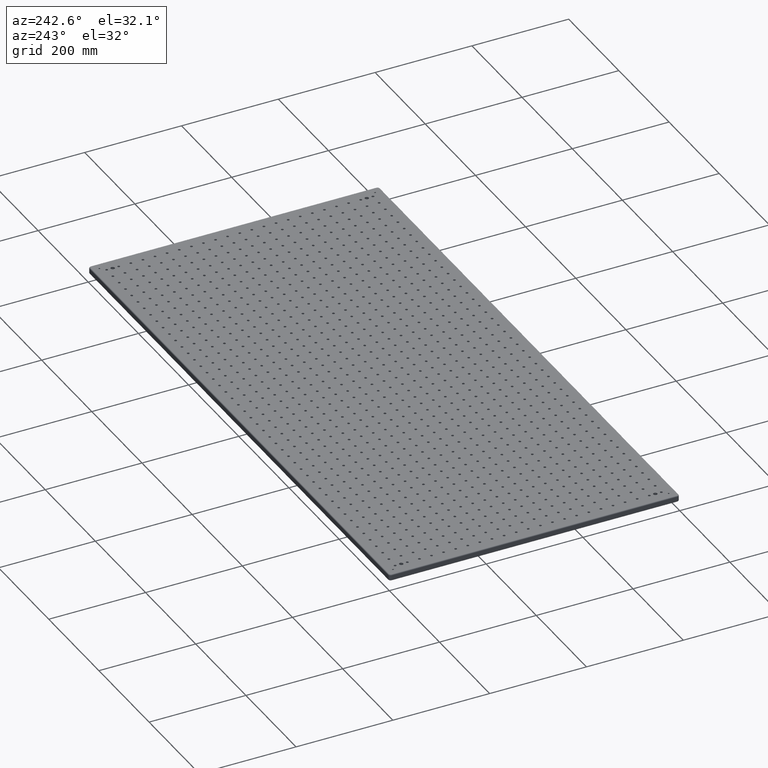
[diagram: clean part render]
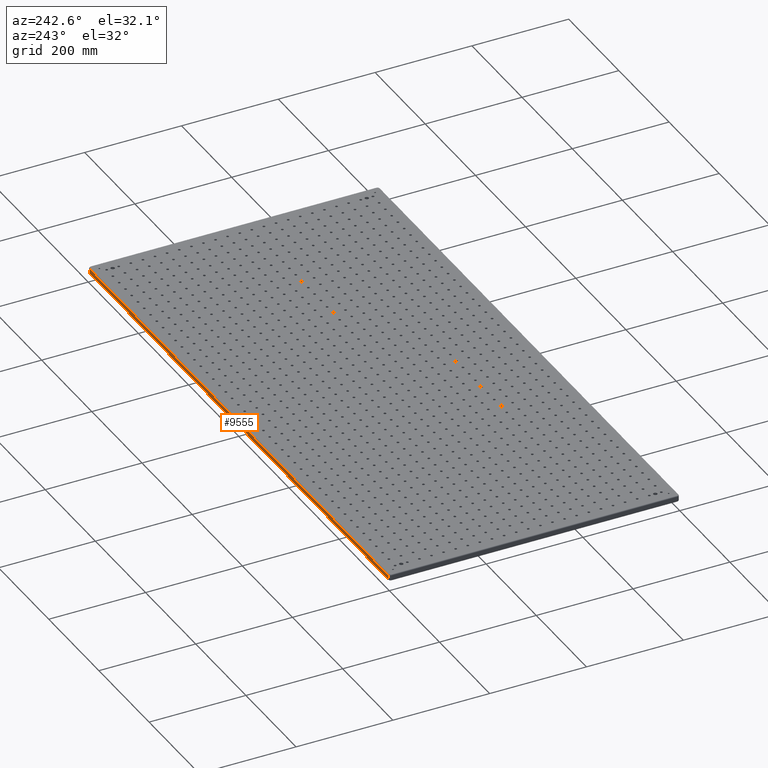
[diagram: same view with one face highlighted and labeled with its STEP entity id]
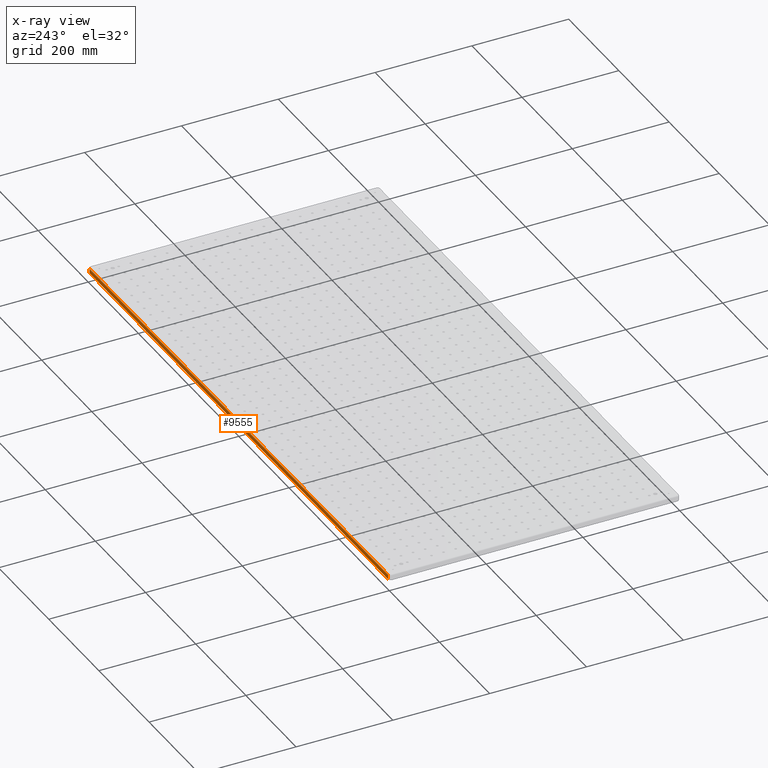
[diagram: x-ray of the same camera — body ghosted, the highlighted face saturated]
A machine part, auxiliary view. The second image highlights one B-rep face of the part: STEP entity #9555.
The next image is the same camera in x-ray: the body ghosted, the highlighted face saturated — about 0% of this face is hidden behind the body in this view.
In plain terms, the highlighted planar face has unit normal (0, 1, 0).
Its self-contained STEP definition (entity closure, byte-faithful):
#1096 = VECTOR ( 'NONE', #40019, 1000.000000000000000 ) ;
#3040 = DIRECTION ( 'NONE',  ( -1.000000000000000000, 0.0000000000000000000, 0.0000000000000000000 ) ) ;
#9555 = ADVANCED_FACE ( 'NONE', ( #51921 ), #15043, .T. ) ;
#13126 = DIRECTION ( 'NONE',  ( 0.0000000000000000000, -0.0000000000000000000, 1.000000000000000000 ) ) ;
#15043 = PLANE ( 'NONE',  #23741 ) ;
#17559 = LINE ( 'NONE', #78391, #52990 ) ;
#19138 = VECTOR ( 'NONE', #13126, 1000.000000000000000 ) ;
#19711 = EDGE_CURVE ( 'NONE', #38530, #69438, #80132, .T. ) ;
#20919 = VECTOR ( 'NONE', #64058, 1000.000000000000000 ) ;
#22150 = CARTESIAN_POINT ( 'NONE',  ( 1195.000000000000000, 600.0000000000000000, -11.00000000000000000 ) ) ;
#22684 = ORIENTED_EDGE ( 'NONE', *, *, #19711, .T. ) ;
#23741 = AXIS2_PLACEMENT_3D ( 'NONE', #65439, #52994, #79353 ) ;
#29719 = EDGE_CURVE ( 'NONE', #58231, #38530, #17559, .T. ) ;
#30522 = ORIENTED_EDGE ( 'NONE', *, *, #45288, .T. ) ;
#34335 = EDGE_LOOP ( 'NONE', ( #22684, #30522, #36514, #65831 ) ) ;
#34544 = CARTESIAN_POINT ( 'NONE',  ( 1195.000000000000000, 600.0000000000000000, -13.00000000000000000 ) ) ;
#36514 = ORIENTED_EDGE ( 'NONE', *, *, #43255, .T. ) ;
#38530 = VERTEX_POINT ( 'NONE', #56279 ) ;
#40019 = DIRECTION ( 'NONE',  ( -0.0000000000000000000, 0.0000000000000000000, -1.000000000000000000 ) ) ;
#43255 = EDGE_CURVE ( 'NONE', #47395, #58231, #79791, .T. ) ;
#45288 = EDGE_CURVE ( 'NONE', #69438, #47395, #73152, .T. ) ;
#47395 = VERTEX_POINT ( 'NONE', #73926 ) ;
#51921 = FACE_OUTER_BOUND ( 'NONE', #34335, .T. ) ;
#52990 = VECTOR ( 'NONE', #3040, 1000.000000000000000 ) ;
#52994 = DIRECTION ( 'NONE',  ( 0.0000000000000000000, 1.000000000000000000, 0.0000000000000000000 ) ) ;
#56279 = CARTESIAN_POINT ( 'NONE',  ( 4.999999999999998200, 600.0000000000000000, -11.00000000000000000 ) ) ;
#58231 = VERTEX_POINT ( 'NONE', #22150 ) ;
#58271 = CARTESIAN_POINT ( 'NONE',  ( 4.999999999999998200, 600.0000000000000000, -13.00000000000000000 ) ) ;
#61984 = CARTESIAN_POINT ( 'NONE',  ( 4.999999999999998200, 600.0000000000000000, -2.000000000000000000 ) ) ;
#62975 = CARTESIAN_POINT ( 'NONE',  ( 1195.000000000000000, 600.0000000000000000, -2.000000000000000000 ) ) ;
#64058 = DIRECTION ( 'NONE',  ( 1.000000000000000000, -0.0000000000000000000, 0.0000000000000000000 ) ) ;
#65439 = CARTESIAN_POINT ( 'NONE',  ( 0.0000000000000000000, 600.0000000000000000, -13.00000000000000000 ) ) ;
#65831 = ORIENTED_EDGE ( 'NONE', *, *, #29719, .T. ) ;
#69438 = VERTEX_POINT ( 'NONE', #61984 ) ;
#73152 = LINE ( 'NONE', #62975, #20919 ) ;
#73926 = CARTESIAN_POINT ( 'NONE',  ( 1195.000000000000000, 600.0000000000000000, -2.000000000000000000 ) ) ;
#78391 = CARTESIAN_POINT ( 'NONE',  ( 0.0000000000000000000, 600.0000000000000000, -11.00000000000000000 ) ) ;
#79353 = DIRECTION ( 'NONE',  ( 0.0000000000000000000, -0.0000000000000000000, 1.000000000000000000 ) ) ;
#79791 = LINE ( 'NONE', #34544, #1096 ) ;
#80132 = LINE ( 'NONE', #58271, #19138 ) ;